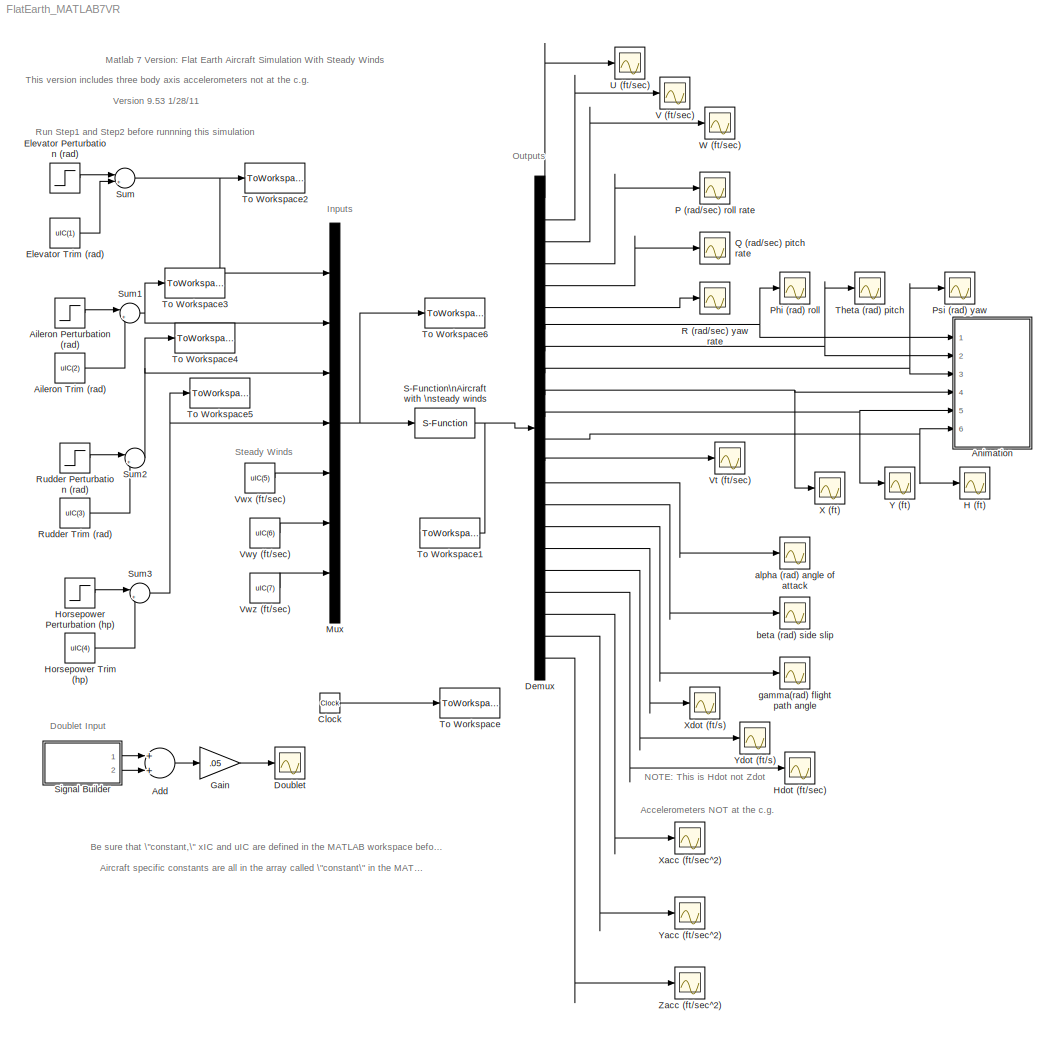
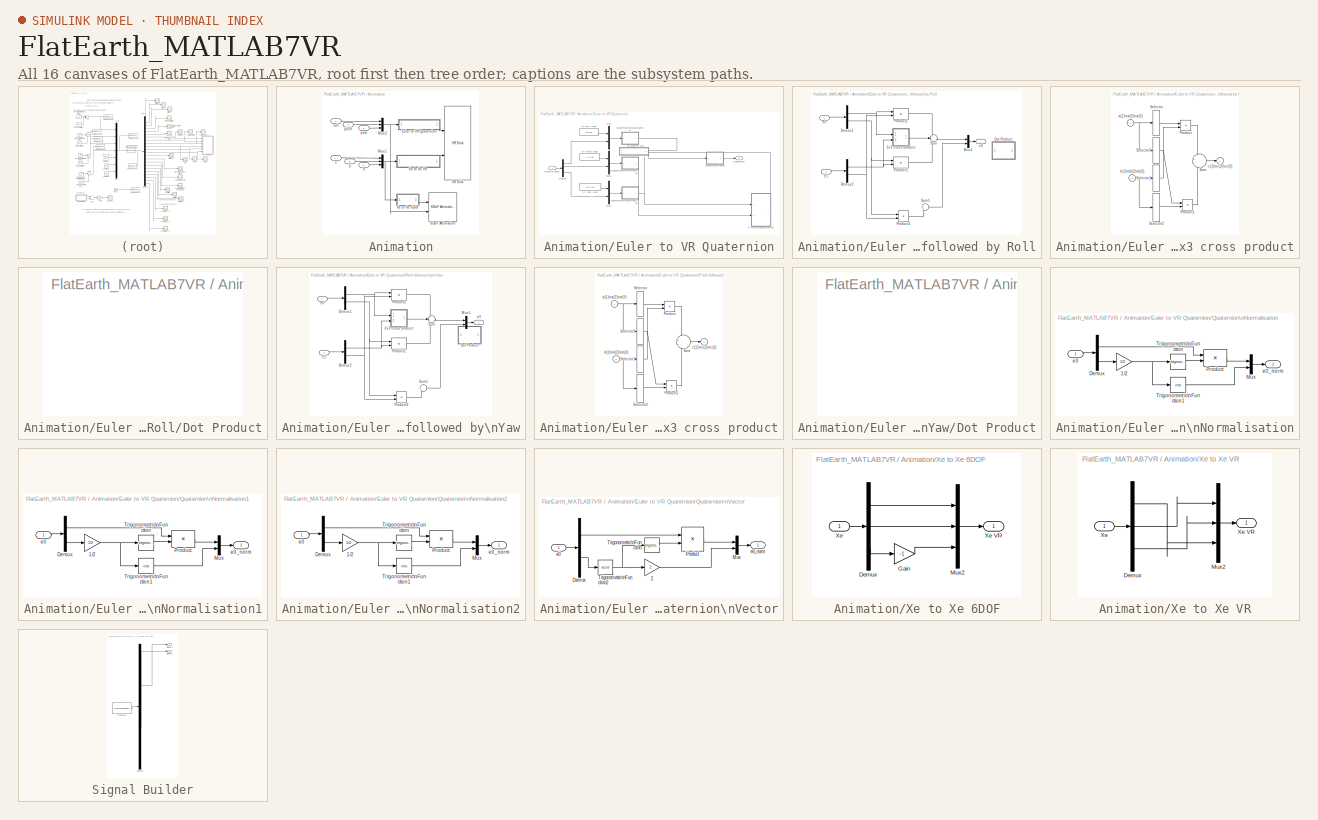
[diagram: thumbnail index - all 16 canvases of the model, root first then tree order]
MODEL FlatEarth_MATLAB7VR
KIND model
BLOCK [Sum] Add
  CollapseMode = All dimensions
  InputSameDT = off
  OutDataTypeMode = Inherit via internal rule
  OutScaling = 2^-10
  Ports = [2, 1]
  SaturateOnIntegerOverflow = off
BLOCK [Step] Aileron Perturbation (rad)
  After = deltaApertRAD
  SampleTime = 0
BLOCK [Constant] Aileron Trim (rad)
  Value = uIC(2)
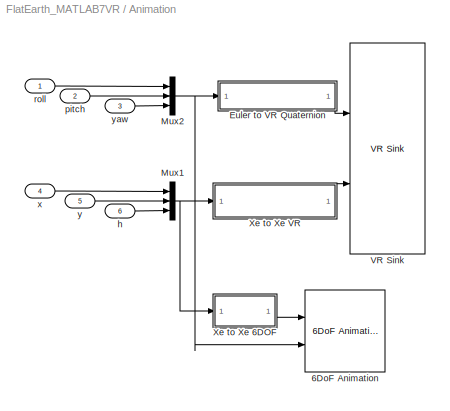
BLOCK [SubSystem] Animation
  FunctionWithSeparateData = off
  MaskHideContents = off
  MinAlgLoopOccurrences = off
  Ports = [6]
  RTWSystemCode = Auto
BLOCK [Reference] Animation/6DoF Animation  REF=aerolibanim/6DoF Animation
  FunctionWithSeparateData = off
  Ports = [2]
  RTWMemSecDataConstants = Inherit from model
  RTWMemSecDataInternal = Inherit from model
  RTWMemSecDataParameters = Inherit from model
  RTWMemSecFuncExecute = Inherit from model
  RTWMemSecFuncInitTerm = Inherit from model
  ShowPortLabels = FromPortIcon
  SourceBlock = aerolibanim/6DoF Animation
  SourceType = 6DoF_Animation
  SystemSampleTime = -1
  u1 = [-10000 10000 -10000 10000 -10000 0]
  u2 = 0.1
  u3 = 20
  u4 = [0 0 0]
  u5 = Fly alongside
  u6 = [100 100 -100]
  u7 = 70
  u8 = on
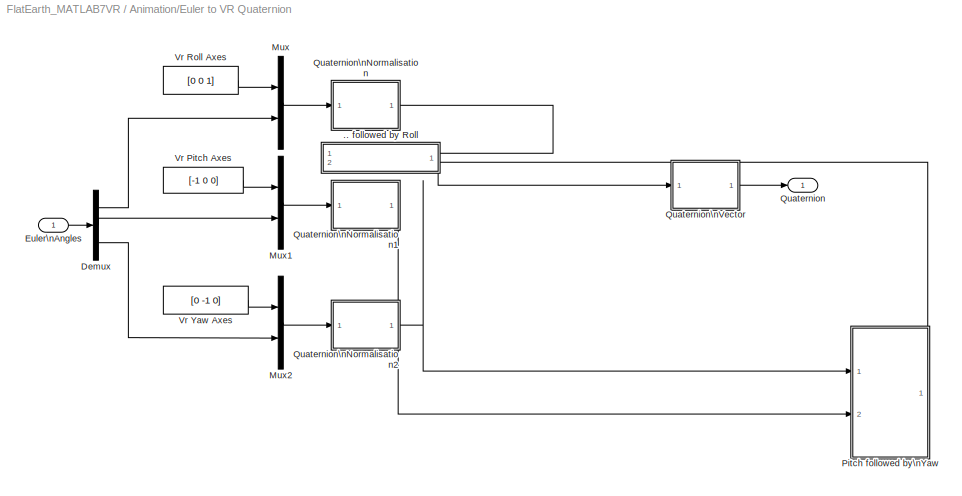
BLOCK [SubSystem] Animation/Euler to VR Quaternion
  FunctionWithSeparateData = off
  MaskHideContents = off
  MinAlgLoopOccurrences = off
  Ports = [1, 1]
  RTWSystemCode = Auto
BLOCK [SubSystem] Animation/Euler to VR Quaternion/.. followed by Roll
  FunctionWithSeparateData = off
  MaskHideContents = off
  MinAlgLoopOccurrences = off
  Ports = [2, 1]
  RTWSystemCode = Auto
BLOCK [SubSystem] Animation/Euler to VR Quaternion/.. followed by Roll/3x3 cross product
  FunctionWithSeparateData = off
  MaskDescription = Calculates the cross product of two 3x1 vectors.
  MaskDisplay = disp('Cross\\nProduct')
  MaskHelp = <p>This block calculates the cross product of two 3x1 vectors, ie.</p>\n\n<ul>C(1) = A(2)*B(3) - A(3)*B(2)</ul>\n<ul>C(2) = A(3)*B(1) - A(1)*B(3)</ul>\n<ul>C(3) = A(1)*B(2) - A(2)*B(1)</ul>\n\n<p>The block inputs and output contain more than one signal as described below.</p>\n\n<p><H4>Block Vector Input 1 - A</H4>\n<ul>\n<li>A(1)</li>\n<li>A(2)</li>\n<li>A(3)</li>\n</ul>\n</p>\n\n<p><H4>Block Vec...<+208ch>
  MaskHideContents = off
  MaskIconFrame = on
  MaskIconOpaque = on
  MaskIconRotate = none
  MaskIconUnits = autoscale
  MaskType = Cross Product
  MinAlgLoopOccurrences = off
  Ports = [2, 1]
  RTWSystemCode = Auto
BLOCK [Product] Animation/Euler to VR Quaternion/.. followed by Roll/3x3 cross product/Product
  CollapseMode = All dimensions
  Ports = [2, 1]
  RndMeth = Floor
BLOCK [Product] Animation/Euler to VR Quaternion/.. followed by Roll/3x3 cross product/Product1
  CollapseMode = All dimensions
  Ports = [2, 1]
  RndMeth = Floor
BLOCK [Selector] Animation/Euler to VR Quaternion/.. followed by Roll/3x3 cross product/Selector
  IndexOptions = Index vector (dialog)
  Indices = 1
  InputPortWidth = 3
  OutputSizes = 1
  Ports = [1, 1]
BLOCK [Selector] Animation/Euler to VR Quaternion/.. followed by Roll/3x3 cross product/Selector1
  IndexOptions = Index vector (dialog)
  Indices = 1
  InputPortWidth = 3
  OutputSizes = 1
  Ports = [1, 1]
BLOCK [Selector] Animation/Euler to VR Quaternion/.. followed by Roll/3x3 cross product/Selector2
  IndexOptions = Index vector (dialog)
  Indices = 1
  InputPortWidth = 3
  OutputSizes = 1
  Ports = [1, 1]
BLOCK [Selector] Animation/Euler to VR Quaternion/.. followed by Roll/3x3 cross product/Selector3
  IndexOptions = Index vector (dialog)
  Indices = 1
  InputPortWidth = 3
  OutputSizes = 1
  Ports = [1, 1]
BLOCK [Sum] Animation/Euler to VR Quaternion/.. followed by Roll/3x3 cross product/Sum
  CollapseMode = All dimensions
  IconShape = round
  Inputs = +|-
  Ports = [2, 1]
BLOCK [Inport] Animation/Euler to VR Quaternion/.. followed by Roll/3x3 cross product/a(1)\na(2)\na(3)
  IconDisplay = Port number
BLOCK [Inport] Animation/Euler to VR Quaternion/.. followed by Roll/3x3 cross product/b(1)\nb(2)\nb(3)
  IconDisplay = Port number
  Port = 2
BLOCK [Outport] Animation/Euler to VR Quaternion/.. followed by Roll/3x3 cross product/c(1)\nc(2)\nc(3)
  BusOutputAsStruct = off
  IconDisplay = Port number
  InitialOutput = 0
BLOCK [Demux] Animation/Euler to VR Quaternion/.. followed by Roll/Demux1
  Outputs = [3 1]
  Ports = [1, 2]
BLOCK [Demux] Animation/Euler to VR Quaternion/.. followed by Roll/Demux2
  Outputs = [3 1]
  Ports = [1, 2]
BLOCK [SubSystem] Animation/Euler to VR Quaternion/.. followed by Roll/Dot Product
  FunctionWithSeparateData = off
  MaskHideContents = off
  MinAlgLoopOccurrences = off
  Ports = []
  RTWSystemCode = Auto
BLOCK [Mux] Animation/Euler to VR Quaternion/.. followed by Roll/Mux1
  DisplayOption = bar
  Inputs = 2
  Ports = [2, 1]
BLOCK [Product] Animation/Euler to VR Quaternion/.. followed by Roll/Product1
  CollapseMode = All dimensions
  Ports = [2, 1]
  RndMeth = Floor
BLOCK [Product] Animation/Euler to VR Quaternion/.. followed by Roll/Product2
  CollapseMode = All dimensions
  Ports = [2, 1]
  RndMeth = Floor
BLOCK [Product] Animation/Euler to VR Quaternion/.. followed by Roll/Product3
  CollapseMode = All dimensions
  Ports = [2, 1]
  RndMeth = Floor
BLOCK [Sum] Animation/Euler to VR Quaternion/.. followed by Roll/Sum
  CollapseMode = All dimensions
  IconShape = round
  Inputs = +++
  Ports = [3, 1]
BLOCK [Sum] Animation/Euler to VR Quaternion/.. followed by Roll/Sum1
  CollapseMode = All dimensions
  IconShape = round
  Inputs = -|+
  Ports = [2, 1]
BLOCK [Inport] Animation/Euler to VR Quaternion/.. followed by Roll/e0
  IconDisplay = Port number
BLOCK [Inport] Animation/Euler to VR Quaternion/.. followed by Roll/e1
  IconDisplay = Port number
  Port = 2
BLOCK [Outport] Animation/Euler to VR Quaternion/.. followed by Roll/e3
  BusOutputAsStruct = off
  IconDisplay = Port number
BLOCK [Demux] Animation/Euler to VR Quaternion/Demux
  Outputs = 3
  Ports = [1, 3]
BLOCK [Inport] Animation/Euler to VR Quaternion/Euler\nAngles
  IconDisplay = Port number
BLOCK [Mux] Animation/Euler to VR Quaternion/Mux
  DisplayOption = bar
  Inputs = 2
  Ports = [2, 1]
BLOCK [Mux] Animation/Euler to VR Quaternion/Mux1
  DisplayOption = bar
  Inputs = 2
  Ports = [2, 1]
BLOCK [Mux] Animation/Euler to VR Quaternion/Mux2
  DisplayOption = bar
  Inputs = 2
  Ports = [2, 1]
BLOCK [SubSystem] Animation/Euler to VR Quaternion/Pitch followed by\nYaw
  FunctionWithSeparateData = off
  MaskHideContents = off
  MinAlgLoopOccurrences = off
  Ports = [2, 1]
  RTWSystemCode = Auto
BLOCK [SubSystem] Animation/Euler to VR Quaternion/Pitch followed by\nYaw/3x3 cross product
  FunctionWithSeparateData = off
  MaskDescription = Calculates the cross product of two 3x1 vectors.
  MaskDisplay = disp('Cross\\nProduct')
  MaskHelp = <p>This block calculates the cross product of two 3x1 vectors, ie.</p>\n\n<ul>C(1) = A(2)*B(3) - A(3)*B(2)</ul>\n<ul>C(2) = A(3)*B(1) - A(1)*B(3)</ul>\n<ul>C(3) = A(1)*B(2) - A(2)*B(1)</ul>\n\n<p>The block inputs and output contain more than one signal as described below.</p>\n\n<p><H4>Block Vector Input 1 - A</H4>\n<ul>\n<li>A(1)</li>\n<li>A(2)</li>\n<li>A(3)</li>\n</ul>\n</p>\n\n<p><H4>Block Vec...<+208ch>
  MaskHideContents = off
  MaskIconFrame = on
  MaskIconOpaque = on
  MaskIconRotate = none
  MaskIconUnits = autoscale
  MaskType = Cross Product
  MinAlgLoopOccurrences = off
  Ports = [2, 1]
  RTWSystemCode = Auto
BLOCK [Product] Animation/Euler to VR Quaternion/Pitch followed by\nYaw/3x3 cross product/Product
  CollapseMode = All dimensions
  Ports = [2, 1]
  RndMeth = Floor
BLOCK [Product] Animation/Euler to VR Quaternion/Pitch followed by\nYaw/3x3 cross product/Product1
  CollapseMode = All dimensions
  Ports = [2, 1]
  RndMeth = Floor
BLOCK [Selector] Animation/Euler to VR Quaternion/Pitch followed by\nYaw/3x3 cross product/Selector
  IndexOptions = Index vector (dialog)
  Indices = 1
  InputPortWidth = 3
  OutputSizes = 1
  Ports = [1, 1]
BLOCK [Selector] Animation/Euler to VR Quaternion/Pitch followed by\nYaw/3x3 cross product/Selector1
  IndexOptions = Index vector (dialog)
  Indices = 1
  InputPortWidth = 3
  OutputSizes = 1
  Ports = [1, 1]
BLOCK [Selector] Animation/Euler to VR Quaternion/Pitch followed by\nYaw/3x3 cross product/Selector2
  IndexOptions = Index vector (dialog)
  Indices = 1
  InputPortWidth = 3
  OutputSizes = 1
  Ports = [1, 1]
BLOCK [Selector] Animation/Euler to VR Quaternion/Pitch followed by\nYaw/3x3 cross product/Selector3
  IndexOptions = Index vector (dialog)
  Indices = 1
  InputPortWidth = 3
  OutputSizes = 1
  Ports = [1, 1]
BLOCK [Sum] Animation/Euler to VR Quaternion/Pitch followed by\nYaw/3x3 cross product/Sum
  CollapseMode = All dimensions
  IconShape = round
  Inputs = +|-
  Ports = [2, 1]
BLOCK [Inport] Animation/Euler to VR Quaternion/Pitch followed by\nYaw/3x3 cross product/a(1)\na(2)\na(3)
  IconDisplay = Port number
BLOCK [Inport] Animation/Euler to VR Quaternion/Pitch followed by\nYaw/3x3 cross product/b(1)\nb(2)\nb(3)
  IconDisplay = Port number
  Port = 2
BLOCK [Outport] Animation/Euler to VR Quaternion/Pitch followed by\nYaw/3x3 cross product/c(1)\nc(2)\nc(3)
  BusOutputAsStruct = off
  IconDisplay = Port number
  InitialOutput = 0
BLOCK [Demux] Animation/Euler to VR Quaternion/Pitch followed by\nYaw/Demux1
  Outputs = [3 1]
  Ports = [1, 2]
BLOCK [Demux] Animation/Euler to VR Quaternion/Pitch followed by\nYaw/Demux2
  Outputs = [3 1]
  Ports = [1, 2]
BLOCK [SubSystem] Animation/Euler to VR Quaternion/Pitch followed by\nYaw/Dot Product
  FunctionWithSeparateData = off
  MaskHideContents = off
  MinAlgLoopOccurrences = off
  Ports = []
  RTWSystemCode = Auto
BLOCK [Mux] Animation/Euler to VR Quaternion/Pitch followed by\nYaw/Mux1
  DisplayOption = bar
  Inputs = 2
  Ports = [2, 1]
BLOCK [Product] Animation/Euler to VR Quaternion/Pitch followed by\nYaw/Product1
  CollapseMode = All dimensions
  Ports = [2, 1]
  RndMeth = Floor
BLOCK [Product] Animation/Euler to VR Quaternion/Pitch followed by\nYaw/Product2
  CollapseMode = All dimensions
  Ports = [2, 1]
  RndMeth = Floor
BLOCK [Product] Animation/Euler to VR Quaternion/Pitch followed by\nYaw/Product3
  CollapseMode = All dimensions
  Ports = [2, 1]
  RndMeth = Floor
BLOCK [Sum] Animation/Euler to VR Quaternion/Pitch followed by\nYaw/Sum
  CollapseMode = All dimensions
  IconShape = round
  Inputs = +++
  Ports = [3, 1]
BLOCK [Sum] Animation/Euler to VR Quaternion/Pitch followed by\nYaw/Sum1
  CollapseMode = All dimensions
  IconShape = round
  Inputs = -|+
  Ports = [2, 1]
BLOCK [Inport] Animation/Euler to VR Quaternion/Pitch followed by\nYaw/e0
  IconDisplay = Port number
BLOCK [Inport] Animation/Euler to VR Quaternion/Pitch followed by\nYaw/e1
  IconDisplay = Port number
  Port = 2
BLOCK [Outport] Animation/Euler to VR Quaternion/Pitch followed by\nYaw/e3
  BusOutputAsStruct = off
  IconDisplay = Port number
BLOCK [Outport] Animation/Euler to VR Quaternion/Quaternion
  BusOutputAsStruct = off
  IconDisplay = Port number
BLOCK [SubSystem] Animation/Euler to VR Quaternion/Quaternion\nNormalisation
  FunctionWithSeparateData = off
  MaskHideContents = off
  MinAlgLoopOccurrences = off
  Ports = [1, 1]
  RTWSystemCode = Auto
BLOCK [Gain] Animation/Euler to VR Quaternion/Quaternion\nNormalisation/1//2
  Gain = 1/2
BLOCK [Demux] Animation/Euler to VR Quaternion/Quaternion\nNormalisation/Demux
  Outputs = [3 1]
  Ports = [1, 2]
BLOCK [Mux] Animation/Euler to VR Quaternion/Quaternion\nNormalisation/Mux
  DisplayOption = bar
  Inputs = 2
  Ports = [2, 1]
BLOCK [Product] Animation/Euler to VR Quaternion/Quaternion\nNormalisation/Product
  CollapseMode = All dimensions
  Ports = [2, 1]
  RndMeth = Floor
BLOCK [Trigonometry] Animation/Euler to VR Quaternion/Quaternion\nNormalisation/Trigonometric\nFunction
  Ports = [1, 1]
BLOCK [Trigonometry] Animation/Euler to VR Quaternion/Quaternion\nNormalisation/Trigonometric\nFunction1
  Operator = cos
  Ports = [1, 1]
BLOCK [Inport] Animation/Euler to VR Quaternion/Quaternion\nNormalisation/e0
  IconDisplay = Port number
BLOCK [Outport] Animation/Euler to VR Quaternion/Quaternion\nNormalisation/e0_norm
  BusOutputAsStruct = off
  IconDisplay = Port number
BLOCK [SubSystem] Animation/Euler to VR Quaternion/Quaternion\nNormalisation1
  FunctionWithSeparateData = off
  MaskHideContents = off
  MinAlgLoopOccurrences = off
  Ports = [1, 1]
  RTWSystemCode = Auto
BLOCK [Gain] Animation/Euler to VR Quaternion/Quaternion\nNormalisation1/1//2
  Gain = 1/2
BLOCK [Demux] Animation/Euler to VR Quaternion/Quaternion\nNormalisation1/Demux
  Outputs = [3 1]
  Ports = [1, 2]
BLOCK [Mux] Animation/Euler to VR Quaternion/Quaternion\nNormalisation1/Mux
  DisplayOption = bar
  Inputs = 2
  Ports = [2, 1]
BLOCK [Product] Animation/Euler to VR Quaternion/Quaternion\nNormalisation1/Product
  CollapseMode = All dimensions
  Ports = [2, 1]
  RndMeth = Floor
BLOCK [Trigonometry] Animation/Euler to VR Quaternion/Quaternion\nNormalisation1/Trigonometric\nFunction
  Ports = [1, 1]
BLOCK [Trigonometry] Animation/Euler to VR Quaternion/Quaternion\nNormalisation1/Trigonometric\nFunction1
  Operator = cos
  Ports = [1, 1]
BLOCK [Inport] Animation/Euler to VR Quaternion/Quaternion\nNormalisation1/e0
  IconDisplay = Port number
BLOCK [Outport] Animation/Euler to VR Quaternion/Quaternion\nNormalisation1/e0_norm
  BusOutputAsStruct = off
  IconDisplay = Port number
BLOCK [SubSystem] Animation/Euler to VR Quaternion/Quaternion\nNormalisation2
  FunctionWithSeparateData = off
  MaskHideContents = off
  MinAlgLoopOccurrences = off
  Ports = [1, 1]
  RTWSystemCode = Auto
BLOCK [Gain] Animation/Euler to VR Quaternion/Quaternion\nNormalisation2/1//2
  Gain = 1/2
BLOCK [Demux] Animation/Euler to VR Quaternion/Quaternion\nNormalisation2/Demux
  Outputs = [3 1]
  Ports = [1, 2]
BLOCK [Mux] Animation/Euler to VR Quaternion/Quaternion\nNormalisation2/Mux
  DisplayOption = bar
  Inputs = 2
  Ports = [2, 1]
BLOCK [Product] Animation/Euler to VR Quaternion/Quaternion\nNormalisation2/Product
  CollapseMode = All dimensions
  Ports = [2, 1]
  RndMeth = Floor
BLOCK [Trigonometry] Animation/Euler to VR Quaternion/Quaternion\nNormalisation2/Trigonometric\nFunction
  Ports = [1, 1]
BLOCK [Trigonometry] Animation/Euler to VR Quaternion/Quaternion\nNormalisation2/Trigonometric\nFunction1
  Operator = cos
  Ports = [1, 1]
BLOCK [Inport] Animation/Euler to VR Quaternion/Quaternion\nNormalisation2/e0
  IconDisplay = Port number
BLOCK [Outport] Animation/Euler to VR Quaternion/Quaternion\nNormalisation2/e0_norm
  BusOutputAsStruct = off
  IconDisplay = Port number
BLOCK [SubSystem] Animation/Euler to VR Quaternion/Quaternion\nVector
  FunctionWithSeparateData = off
  MaskHideContents = off
  MinAlgLoopOccurrences = off
  Ports = [1, 1]
  RTWSystemCode = Auto
BLOCK [Gain] Animation/Euler to VR Quaternion/Quaternion\nVector/2
  Gain = 2
BLOCK [Demux] Animation/Euler to VR Quaternion/Quaternion\nVector/Demux
  Outputs = [3 1]
  Ports = [1, 2]
BLOCK [Mux] Animation/Euler to VR Quaternion/Quaternion\nVector/Mux
  DisplayOption = bar
  Inputs = 2
  Ports = [2, 1]
BLOCK [Product] Animation/Euler to VR Quaternion/Quaternion\nVector/Product
  CollapseMode = All dimensions
  Inputs = */
  Ports = [2, 1]
  RndMeth = Floor
BLOCK [Trigonometry] Animation/Euler to VR Quaternion/Quaternion\nVector/Trigonometric\nFunction
  Ports = [1, 1]
BLOCK [Trigonometry] Animation/Euler to VR Quaternion/Quaternion\nVector/Trigonometric\nFunction2
  Operator = acos
  Ports = [1, 1]
BLOCK [Inport] Animation/Euler to VR Quaternion/Quaternion\nVector/e0
  IconDisplay = Port number
BLOCK [Outport] Animation/Euler to VR Quaternion/Quaternion\nVector/e0_norm
  BusOutputAsStruct = off
  IconDisplay = Port number
BLOCK [Constant] Animation/Euler to VR Quaternion/Vr Pitch Axes
  Value = [-1 0 0]
BLOCK [Constant] Animation/Euler to VR Quaternion/Vr Roll Axes
  Value = [0 0 1]
BLOCK [Constant] Animation/Euler to VR Quaternion/Vr Yaw Axes
  Value = [0 -1 0]
BLOCK [Mux] Animation/Mux1
  DisplayOption = bar
  Inputs = 3
  Ports = [3, 1]
BLOCK [Mux] Animation/Mux2
  DisplayOption = bar
  Inputs = 3
  Ports = [3, 1]
BLOCK [Reference] Animation/VR Sink  REF=vrlib/VR Sink
  AutoView = on
  FieldsWritten = Plane.rotation.4.1.double#Plane.translation.3.1.double
  FigureProperties = {'Position', 'Name', 'Viewpoint', 'CameraBound', 'CameraDirection', 'CameraPosition', 'CameraUpVector', 'ZoomFactor', 'Antialiasing', 'Headlight', 'Lighting', 'NavPanel', 'StatusBar', 'ToolBar', 'Textures', 'Transparency', 'Wireframe', 'NavZones', 'NavMode', 'NavSpeed', 'Record2DCompressMethod', 'Record2DCompressQuality', 'Record2D', 'Record2DFileName', 'Record2DFPS'; [1.3300000000000000e+03   6.7...<+526ch>
  Ports = [2]
  RemoteChange = off
  RemoteView = off
  SampleTime = -1
  SourceBlock = vrlib/VR Sink
  SourceType = Virtual Reality Sink
  ViewEnable = on
  WorldFileName = F15OverOcean.WRL
BLOCK [SubSystem] Animation/Xe to Xe 6DOF
  FunctionWithSeparateData = off
  MaskHideContents = off
  MinAlgLoopOccurrences = off
  Ports = [1, 1]
  RTWSystemCode = Auto
BLOCK [Demux] Animation/Xe to Xe 6DOF/Demux
  DisplayOption = bar
  Outputs = 3
  Ports = [1, 3]
BLOCK [Gain] Animation/Xe to Xe 6DOF/Gain
  Gain = -1
  OutDataTypeMode = Inherit via internal rule
  ParameterDataTypeMode = Inherit via internal rule
  SaturateOnIntegerOverflow = off
BLOCK [Mux] Animation/Xe to Xe 6DOF/Mux2
  DisplayOption = bar
  Inputs = 3
  Ports = [3, 1]
BLOCK [Inport] Animation/Xe to Xe 6DOF/Xe
  IconDisplay = Port number
BLOCK [Outport] Animation/Xe to Xe 6DOF/Xe VR
  BusOutputAsStruct = off
  IconDisplay = Port number
BLOCK [SubSystem] Animation/Xe to Xe VR
  FunctionWithSeparateData = off
  MaskHideContents = off
  MinAlgLoopOccurrences = off
  Ports = [1, 1]
  RTWSystemCode = Auto
BLOCK [Demux] Animation/Xe to Xe VR/Demux
  DisplayOption = bar
  Outputs = 3
  Ports = [1, 3]
BLOCK [Mux] Animation/Xe to Xe VR/Mux2
  DisplayOption = bar
  Inputs = 3
  Ports = [3, 1]
BLOCK [Inport] Animation/Xe to Xe VR/Xe
  IconDisplay = Port number
BLOCK [Outport] Animation/Xe to Xe VR/Xe VR
  BusOutputAsStruct = off
  IconDisplay = Port number
BLOCK [Inport] Animation/h
  IconDisplay = Port number
  OutDataType = fixdt(1,16,0)
  OutScaling = []
  Port = 6
BLOCK [Inport] Animation/pitch
  IconDisplay = Port number
  OutDataType = fixdt(1,16,0)
  OutScaling = []
  Port = 2
BLOCK [Inport] Animation/roll
  IconDisplay = Port number
  OutDataType = fixdt(1,16,0)
  OutScaling = []
BLOCK [Inport] Animation/x
  IconDisplay = Port number
  OutDataType = fixdt(1,16,0)
  OutScaling = []
  Port = 4
BLOCK [Inport] Animation/y
  IconDisplay = Port number
  OutDataType = fixdt(1,16,0)
  OutScaling = []
  Port = 5
BLOCK [Inport] Animation/yaw
  IconDisplay = Port number
  OutDataType = fixdt(1,16,0)
  OutScaling = []
  Port = 3
BLOCK [Clock] Clock
  Decimation = 10
BLOCK [Demux] Demux
  Outputs = 22
  Ports = [1, 22]
BLOCK [Scope] Doublet
  DataFormat = StructureWithTime
  Floating = off
  NumInputPorts = 1
  Ports = [1]
  SampleTime = 0
  SaveName = ScopeData22
BLOCK [Step] Elevator Perturbation (rad)
  After = deltaEpertRAD
  SampleTime = 0
BLOCK [Constant] Elevator Trim (rad)
  Value = uIC(1)
BLOCK [Gain] Gain
  Gain = .05
  OutDataTypeMode = Inherit via internal rule
  ParameterDataTypeMode = Inherit via internal rule
  SaturateOnIntegerOverflow = off
BLOCK [Scope] H (ft)
  DataFormat = StructureWithTime
  Floating = off
  NumInputPorts = 1
  Ports = [1]
  SampleTime = 0
  SaveName = ScopeData11
  TimeRange = 50
  ZoomMode = xonly
BLOCK [Scope] Hdot (ft//sec)
  DataFormat = StructureWithTime
  Floating = off
  NumInputPorts = 1
  Ports = [1]
  SampleTime = 0
  SaveName = ScopeData18
BLOCK [Step] Horsepower Perturbation (hp)
  After = deltabhppert
  SampleTime = 0
BLOCK [Constant] Horsepower Trim (hp)
  Value = uIC(4)
BLOCK [Mux] Mux
  DisplayOption = bar
  Inputs = 7
  Ports = [7, 1]
BLOCK [Scope] P (rad//sec) roll rate
  DataFormat = StructureWithTime
  Floating = off
  NumInputPorts = 1
  Ports = [1]
  SampleTime = 0
  SaveName = ScopeData3
  ZoomMode = xonly
BLOCK [Scope] Phi (rad) roll
  DataFormat = StructureWithTime
  Floating = off
  NumInputPorts = 1
  Ports = [1]
  SampleTime = 0
  SaveName = ScopeData6
BLOCK [Scope] Psi (rad) yaw
  DataFormat = StructureWithTime
  Floating = off
  NumInputPorts = 1
  Ports = [1]
  SampleTime = 0
  SaveName = ScopeData8
  ZoomMode = yonly
BLOCK [Scope] Q (rad//sec) pitch rate
  DataFormat = StructureWithTime
  Floating = off
  NumInputPorts = 1
  Ports = [1]
  SampleTime = 0
  SaveName = ScopeData4
BLOCK [Scope] R (rad//sec) yaw rate
  DataFormat = StructureWithTime
  Floating = off
  NumInputPorts = 1
  Ports = [1]
  SampleTime = 0
  SaveName = ScopeData5
BLOCK [Step] Rudder Perturbation (rad)
  After = deltaRpertRAD
  SampleTime = 0
BLOCK [Constant] Rudder Trim (rad)
  Value = uIC(3)
BLOCK [S-Function] S-Function\nAircraft with \nsteady winds
  FunctionName = aircraft9
  Parameters = constant,xIC,Xa
  Ports = [1, 1]
BLOCK [SubSystem] Signal Builder
  ClipboardFcn = sigbuilder_block('clipboard');
  CloseFcn = sigbuilder_block('close');
  CopyFcn = sigbuilder_block('copy');
  DeleteFcn = sigbuilder_block('delete');
  FunctionWithSeparateData = off
  LoadFcn = sigbuilder_block('load');
  MaskDescription = Sigbuilder GUI
  MaskDisplay = plot(0,0,100,100,[10,10,40,40,10],[80,20,20,80,80],[40,10],[50,50], [40,27,10],[65,72,56],[40,25,25,10],[28,28,43,43]);
  MaskHideContents = off
  MaskIconFrame = on
  MaskIconOpaque = off
  MaskIconRotate = port
  MaskIconUnits = autoscale
  MaskInitialization = if ~strcmp(get_param(bdroot(gcbh),'SimulationStatus'),'stopped') tuvar = sigbuilder_block('maskInit'); end
  MaskType = Sigbuilder block
  MinAlgLoopOccurrences = off
  ModelCloseFcn = sigbuilder_block('modelClose');
  NameChangeFcn = sigbuilder_block('namechange');
  OpenFcn = sigbuilder_block('open',[437.6 199.2 550.4 400 ]);
  Ports = [0, 2]
  PreSaveFcn = sigbuilder_block('preSave');
  RTWSystemCode = Auto
  StartFcn = sigbuilder_block('start');
  StopFcn = sigbuilder_block('stop');
  Tag = STV Subsys
BLOCK [Demux] Signal Builder/Demux
  Outputs = 2
  Ports = [1, 2]
  Tag = STV Demux
BLOCK [FromWorkspace] Signal Builder/FromWs
  SampleTime = 0
  SigBuilderData = DataTag0
  Tag = STV FromWs
  VariableName = tuvar
  VnvData = DataTag1
  ZeroCross = on
BLOCK [Outport] Signal Builder/Signal 1
  BusOutputAsStruct = off
  IconDisplay = Port number
  Tag = STV Outport
BLOCK [Outport] Signal Builder/Signal 2
  BusOutputAsStruct = off
  IconDisplay = Port number
  Port = 2
  Tag = STV Outport
BLOCK [Sum] Sum
  CollapseMode = All dimensions
  IconShape = round
  Inputs = |++
  Ports = [2, 1]
BLOCK [Sum] Sum1
  CollapseMode = All dimensions
  IconShape = round
  Inputs = |++
  Ports = [2, 1]
BLOCK [Sum] Sum2
  CollapseMode = All dimensions
  IconShape = round
  Inputs = |++
  Ports = [2, 1]
BLOCK [Sum] Sum3
  CollapseMode = All dimensions
  IconShape = round
  Inputs = |++
  Ports = [2, 1]
BLOCK [Scope] Theta (rad) pitch
  DataFormat = StructureWithTime
  Floating = off
  NumInputPorts = 1
  Ports = [1]
  SampleTime = 0
  SaveName = ScopeData7
BLOCK [ToWorkspace] To Workspace
  MaxDataPoints = inf
  SampleTime = -1
  SaveFormat = Array
  VariableName = taircraft
BLOCK [ToWorkspace] To Workspace1
  MaxDataPoints = inf
  SampleTime = -1
  SaveFormat = Array
  VariableName = yaircraft
BLOCK [ToWorkspace] To Workspace2
  MaxDataPoints = inf
  SampleTime = -1
  SaveFormat = Array
  VariableName = deltaE
BLOCK [ToWorkspace] To Workspace3
  MaxDataPoints = inf
  SampleTime = -1
  SaveFormat = Array
  VariableName = deltaA
BLOCK [ToWorkspace] To Workspace4
  MaxDataPoints = inf
  SampleTime = -1
  SaveFormat = Array
  VariableName = deltaR
BLOCK [ToWorkspace] To Workspace5
  MaxDataPoints = inf
  SampleTime = -1
  SaveFormat = Array
  VariableName = deltabhp
BLOCK [ToWorkspace] To Workspace6
  MaxDataPoints = inf
  SampleTime = -1
  SaveFormat = Array
  VariableName = uaircraft
BLOCK [Scope] U (ft//sec)
  DataFormat = StructureWithTime
  Floating = off
  NumInputPorts = 1
  Ports = [1]
  SampleTime = 0
BLOCK [Scope] V (ft//sec)
  DataFormat = StructureWithTime
  Floating = off
  NumInputPorts = 1
  Ports = [1]
  SampleTime = 0
  SaveName = ScopeData1
BLOCK [Scope] Vt (ft//sec)
  DataFormat = StructureWithTime
  Floating = off
  NumInputPorts = 1
  Ports = [1]
  SampleTime = 0
  SaveName = ScopeData12
  TimeRange = 50
  YMax = 99.324
  YMin = 99.319
BLOCK [Constant] Vwx (ft//sec)
  Value = uIC(5)
BLOCK [Constant] Vwy (ft//sec)
  Value = uIC(6)
BLOCK [Constant] Vwz (ft//sec)
  Value = uIC(7)
BLOCK [Scope] W (ft//sec)
  DataFormat = StructureWithTime
  Floating = off
  NumInputPorts = 1
  Ports = [1]
  SampleTime = 0
  SaveName = ScopeData2
  YMax = 14
  YMin = 0
BLOCK [Scope] X (ft)
  DataFormat = StructureWithTime
  Floating = off
  NumInputPorts = 1
  Ports = [1]
  SampleTime = 0
  SaveName = ScopeData9
BLOCK [Scope] Xacc (ft//sec^2)
  DataFormat = StructureWithTime
  Floating = off
  NumInputPorts = 1
  Ports = [1]
  SampleTime = 0
  SaveName = ScopeData19
BLOCK [Scope] Xdot (ft//s)
  DataFormat = StructureWithTime
  Floating = off
  NumInputPorts = 1
  Ports = [1]
  SampleTime = 0
  SaveName = ScopeData16
BLOCK [Scope] Y (ft)
  DataFormat = StructureWithTime
  Floating = off
  NumInputPorts = 1
  Ports = [1]
  SampleTime = 0
  SaveName = ScopeData10
BLOCK [Scope] Yacc (ft//sec^2)
  DataFormat = StructureWithTime
  Floating = off
  NumInputPorts = 1
  Ports = [1]
  SampleTime = 0
  SaveName = ScopeData20
BLOCK [Scope] Ydot (ft//s)
  DataFormat = StructureWithTime
  Floating = off
  NumInputPorts = 1
  Ports = [1]
  SampleTime = 0
  SaveName = ScopeData17
BLOCK [Scope] Zacc (ft//sec^2)
  DataFormat = StructureWithTime
  Floating = off
  NumInputPorts = 1
  Ports = [1]
  SampleTime = 0
  SaveName = ScopeData21
BLOCK [Scope] alpha (rad) angle of attack
  DataFormat = StructureWithTime
  Floating = off
  NumInputPorts = 1
  Ports = [1]
  SampleTime = 0
  SaveName = ScopeData13
BLOCK [Scope] beta (rad) side slip
  DataFormat = StructureWithTime
  Floating = off
  NumInputPorts = 1
  Ports = [1]
  SampleTime = 0
  SaveName = ScopeData14
BLOCK [Scope] gamma(rad) flight path angle
  DataFormat = StructureWithTime
  Floating = off
  NumInputPorts = 1
  Ports = [1]
  SampleTime = 0
  SaveName = ScopeData15
ANNOTATION (root): Accelerometers NOT at the c.g.
ANNOTATION (root): Aircraft specific constants are all in the array called \"constant\" in the MATLAB workspace.
ANNOTATION (root): Be sure that \"constant,\" xIC and uIC are defined in the MATLAB workspace before running.
ANNOTATION (root): Doublet Input
ANNOTATION (root): Inputs
ANNOTATION (root): Matlab 7 Version: Flat Earth Aircraft Simulation With Steady Winds
ANNOTATION (root): NOTE: This is Hdot not Zdot
ANNOTATION (root): Outputs
ANNOTATION (root): Run Step1 and Step2 before runnning this simulation
ANNOTATION (root): Steady Winds
ANNOTATION (root): This version includes three body axis accelerometers not at the c.g.
ANNOTATION (root): Version 9.53 1/28/11
LINE Add:1 -> Gain:1
LINE Aileron Perturbation (rad):1 -> Sum1:1
LINE Aileron Trim (rad):1 -> Sum1:2
LINE Animation/Euler to VR Quaternion/.. followed by Roll/3x3 cross product/Product1:1 -> Animation/Euler to VR Quaternion/.. followed by Roll/3x3 cross product/Sum:2
LINE Animation/Euler to VR Quaternion/.. followed by Roll/3x3 cross product/Product:1 -> Animation/Euler to VR Quaternion/.. followed by Roll/3x3 cross product/Sum:1
LINE Animation/Euler to VR Quaternion/.. followed by Roll/3x3 cross product/Selector1:1 -> Animation/Euler to VR Quaternion/.. followed by Roll/3x3 cross product/Product:2
LINE Animation/Euler to VR Quaternion/.. followed by Roll/3x3 cross product/Selector2:1 -> Animation/Euler to VR Quaternion/.. followed by Roll/3x3 cross product/Product1:2
LINE Animation/Euler to VR Quaternion/.. followed by Roll/3x3 cross product/Selector3:1 -> Animation/Euler to VR Quaternion/.. followed by Roll/3x3 cross product/Product1:1
LINE Animation/Euler to VR Quaternion/.. followed by Roll/3x3 cross product/Selector:1 -> Animation/Euler to VR Quaternion/.. followed by Roll/3x3 cross product/Product:1
LINE Animation/Euler to VR Quaternion/.. followed by Roll/3x3 cross product/Sum:1 -> Animation/Euler to VR Quaternion/.. followed by Roll/3x3 cross product/c(1)\nc(2)\nc(3):1
NET Animation/Euler to VR Quaternion/.. followed by Roll/3x3 cross product/a(1)\na(2)\na(3):1 -> Animation/Euler to VR Quaternion/.. followed by Roll/3x3 cross product/Selector3:1, Animation/Euler to VR Quaternion/.. followed by Roll/3x3 cross product/Selector:1
NET Animation/Euler to VR Quaternion/.. followed by Roll/3x3 cross product/b(1)\nb(2)\nb(3):1 -> Animation/Euler to VR Quaternion/.. followed by Roll/3x3 cross product/Selector1:1, Animation/Euler to VR Quaternion/.. followed by Roll/3x3 cross product/Selector2:1
LINE Animation/Euler to VR Quaternion/.. followed by Roll/3x3 cross product:1 -> Animation/Euler to VR Quaternion/.. followed by Roll/Sum:2
NET Animation/Euler to VR Quaternion/.. followed by Roll/Demux1:1 -> Animation/Euler to VR Quaternion/.. followed by Roll/3x3 cross product:1, Animation/Euler to VR Quaternion/.. followed by Roll/Product2:1
NET Animation/Euler to VR Quaternion/.. followed by Roll/Demux1:2 -> Animation/Euler to VR Quaternion/.. followed by Roll/Product1:1, Animation/Euler to VR Quaternion/.. followed by Roll/Product3:1
NET Animation/Euler to VR Quaternion/.. followed by Roll/Demux2:1 -> Animation/Euler to VR Quaternion/.. followed by Roll/3x3 cross product:2, Animation/Euler to VR Quaternion/.. followed by Roll/Product1:2
NET Animation/Euler to VR Quaternion/.. followed by Roll/Demux2:2 -> Animation/Euler to VR Quaternion/.. followed by Roll/Product2:2, Animation/Euler to VR Quaternion/.. followed by Roll/Product3:2
LINE Animation/Euler to VR Quaternion/.. followed by Roll/Mux1:1 -> Animation/Euler to VR Quaternion/.. followed by Roll/e3:1
LINE Animation/Euler to VR Quaternion/.. followed by Roll/Product1:1 -> Animation/Euler to VR Quaternion/.. followed by Roll/Sum:3
LINE Animation/Euler to VR Quaternion/.. followed by Roll/Product2:1 -> Animation/Euler to VR Quaternion/.. followed by Roll/Sum:1
LINE Animation/Euler to VR Quaternion/.. followed by Roll/Product3:1 -> Animation/Euler to VR Quaternion/.. followed by Roll/Sum1:2
LINE Animation/Euler to VR Quaternion/.. followed by Roll/Sum1:1 -> Animation/Euler to VR Quaternion/.. followed by Roll/Mux1:2
LINE Animation/Euler to VR Quaternion/.. followed by Roll/Sum:1 -> Animation/Euler to VR Quaternion/.. followed by Roll/Mux1:1
LINE Animation/Euler to VR Quaternion/.. followed by Roll/e0:1 -> Animation/Euler to VR Quaternion/.. followed by Roll/Demux1:1
LINE Animation/Euler to VR Quaternion/.. followed by Roll/e1:1 -> Animation/Euler to VR Quaternion/.. followed by Roll/Demux2:1
LINE Animation/Euler to VR Quaternion/.. followed by Roll:1 -> Animation/Euler to VR Quaternion/Quaternion\nVector:1
LINE Animation/Euler to VR Quaternion/Demux:1 -> Animation/Euler to VR Quaternion/Mux:2
LINE Animation/Euler to VR Quaternion/Demux:2 -> Animation/Euler to VR Quaternion/Mux1:2
LINE Animation/Euler to VR Quaternion/Demux:3 -> Animation/Euler to VR Quaternion/Mux2:2
LINE Animation/Euler to VR Quaternion/Euler\nAngles:1 -> Animation/Euler to VR Quaternion/Demux:1
LINE Animation/Euler to VR Quaternion/Mux1:1 -> Animation/Euler to VR Quaternion/Quaternion\nNormalisation1:1
LINE Animation/Euler to VR Quaternion/Mux2:1 -> Animation/Euler to VR Quaternion/Quaternion\nNormalisation2:1
LINE Animation/Euler to VR Quaternion/Mux:1 -> Animation/Euler to VR Quaternion/Quaternion\nNormalisation:1
LINE Animation/Euler to VR Quaternion/Pitch followed by\nYaw/3x3 cross product/Product1:1 -> Animation/Euler to VR Quaternion/Pitch followed by\nYaw/3x3 cross product/Sum:2
LINE Animation/Euler to VR Quaternion/Pitch followed by\nYaw/3x3 cross product/Product:1 -> Animation/Euler to VR Quaternion/Pitch followed by\nYaw/3x3 cross product/Sum:1
LINE Animation/Euler to VR Quaternion/Pitch followed by\nYaw/3x3 cross product/Selector1:1 -> Animation/Euler to VR Quaternion/Pitch followed by\nYaw/3x3 cross product/Product:2
LINE Animation/Euler to VR Quaternion/Pitch followed by\nYaw/3x3 cross product/Selector2:1 -> Animation/Euler to VR Quaternion/Pitch followed by\nYaw/3x3 cross product/Product1:2
LINE Animation/Euler to VR Quaternion/Pitch followed by\nYaw/3x3 cross product/Selector3:1 -> Animation/Euler to VR Quaternion/Pitch followed by\nYaw/3x3 cross product/Product1:1
LINE Animation/Euler to VR Quaternion/Pitch followed by\nYaw/3x3 cross product/Selector:1 -> Animation/Euler to VR Quaternion/Pitch followed by\nYaw/3x3 cross product/Product:1
LINE Animation/Euler to VR Quaternion/Pitch followed by\nYaw/3x3 cross product/Sum:1 -> Animation/Euler to VR Quaternion/Pitch followed by\nYaw/3x3 cross product/c(1)\nc(2)\nc(3):1
NET Animation/Euler to VR Quaternion/Pitch followed by\nYaw/3x3 cross product/a(1)\na(2)\na(3):1 -> Animation/Euler to VR Quaternion/Pitch followed by\nYaw/3x3 cross product/Selector3:1, Animation/Euler to VR Quaternion/Pitch followed by\nYaw/3x3 cross product/Selector:1
NET Animation/Euler to VR Quaternion/Pitch followed by\nYaw/3x3 cross product/b(1)\nb(2)\nb(3):1 -> Animation/Euler to VR Quaternion/Pitch followed by\nYaw/3x3 cross product/Selector1:1, Animation/Euler to VR Quaternion/Pitch followed by\nYaw/3x3 cross product/Selector2:1
LINE Animation/Euler to VR Quaternion/Pitch followed by\nYaw/3x3 cross product:1 -> Animation/Euler to VR Quaternion/Pitch followed by\nYaw/Sum:2
NET Animation/Euler to VR Quaternion/Pitch followed by\nYaw/Demux1:1 -> Animation/Euler to VR Quaternion/Pitch followed by\nYaw/3x3 cross product:1, Animation/Euler to VR Quaternion/Pitch followed by\nYaw/Product2:1
NET Animation/Euler to VR Quaternion/Pitch followed by\nYaw/Demux1:2 -> Animation/Euler to VR Quaternion/Pitch followed by\nYaw/Product1:1, Animation/Euler to VR Quaternion/Pitch followed by\nYaw/Product3:1
NET Animation/Euler to VR Quaternion/Pitch followed by\nYaw/Demux2:1 -> Animation/Euler to VR Quaternion/Pitch followed by\nYaw/3x3 cross product:2, Animation/Euler to VR Quaternion/Pitch followed by\nYaw/Product1:2
NET Animation/Euler to VR Quaternion/Pitch followed by\nYaw/Demux2:2 -> Animation/Euler to VR Quaternion/Pitch followed by\nYaw/Product2:2, Animation/Euler to VR Quaternion/Pitch followed by\nYaw/Product3:2
LINE Animation/Euler to VR Quaternion/Pitch followed by\nYaw/Mux1:1 -> Animation/Euler to VR Quaternion/Pitch followed by\nYaw/e3:1
LINE Animation/Euler to VR Quaternion/Pitch followed by\nYaw/Product1:1 -> Animation/Euler to VR Quaternion/Pitch followed by\nYaw/Sum:3
LINE Animation/Euler to VR Quaternion/Pitch followed by\nYaw/Product2:1 -> Animation/Euler to VR Quaternion/Pitch followed by\nYaw/Sum:1
LINE Animation/Euler to VR Quaternion/Pitch followed by\nYaw/Product3:1 -> Animation/Euler to VR Quaternion/Pitch followed by\nYaw/Sum1:2
LINE Animation/Euler to VR Quaternion/Pitch followed by\nYaw/Sum1:1 -> Animation/Euler to VR Quaternion/Pitch followed by\nYaw/Mux1:2
LINE Animation/Euler to VR Quaternion/Pitch followed by\nYaw/Sum:1 -> Animation/Euler to VR Quaternion/Pitch followed by\nYaw/Mux1:1
LINE Animation/Euler to VR Quaternion/Pitch followed by\nYaw/e0:1 -> Animation/Euler to VR Quaternion/Pitch followed by\nYaw/Demux1:1
LINE Animation/Euler to VR Quaternion/Pitch followed by\nYaw/e1:1 -> Animation/Euler to VR Quaternion/Pitch followed by\nYaw/Demux2:1
LINE Animation/Euler to VR Quaternion/Pitch followed by\nYaw:1 -> Animation/Euler to VR Quaternion/.. followed by Roll:2
NET Animation/Euler to VR Quaternion/Quaternion\nNormalisation/1//2:1 -> Animation/Euler to VR Quaternion/Quaternion\nNormalisation/Trigonometric\nFunction1:1, Animation/Euler to VR Quaternion/Quaternion\nNormalisation/Trigonometric\nFunction:1
LINE Animation/Euler to VR Quaternion/Quaternion\nNormalisation/Demux:1 -> Animation/Euler to VR Quaternion/Quaternion\nNormalisation/Product:1
LINE Animation/Euler to VR Quaternion/Quaternion\nNormalisation/Demux:2 -> Animation/Euler to VR Quaternion/Quaternion\nNormalisation/1//2:1
LINE Animation/Euler to VR Quaternion/Quaternion\nNormalisation/Mux:1 -> Animation/Euler to VR Quaternion/Quaternion\nNormalisation/e0_norm:1
LINE Animation/Euler to VR Quaternion/Quaternion\nNormalisation/Product:1 -> Animation/Euler to VR Quaternion/Quaternion\nNormalisation/Mux:1
LINE Animation/Euler to VR Quaternion/Quaternion\nNormalisation/Trigonometric\nFunction1:1 -> Animation/Euler to VR Quaternion/Quaternion\nNormalisation/Mux:2
LINE Animation/Euler to VR Quaternion/Quaternion\nNormalisation/Trigonometric\nFunction:1 -> Animation/Euler to VR Quaternion/Quaternion\nNormalisation/Product:2
LINE Animation/Euler to VR Quaternion/Quaternion\nNormalisation/e0:1 -> Animation/Euler to VR Quaternion/Quaternion\nNormalisation/Demux:1
NET Animation/Euler to VR Quaternion/Quaternion\nNormalisation1/1//2:1 -> Animation/Euler to VR Quaternion/Quaternion\nNormalisation1/Trigonometric\nFunction1:1, Animation/Euler to VR Quaternion/Quaternion\nNormalisation1/Trigonometric\nFunction:1
LINE Animation/Euler to VR Quaternion/Quaternion\nNormalisation1/Demux:1 -> Animation/Euler to VR Quaternion/Quaternion\nNormalisation1/Product:1
LINE Animation/Euler to VR Quaternion/Quaternion\nNormalisation1/Demux:2 -> Animation/Euler to VR Quaternion/Quaternion\nNormalisation1/1//2:1
LINE Animation/Euler to VR Quaternion/Quaternion\nNormalisation1/Mux:1 -> Animation/Euler to VR Quaternion/Quaternion\nNormalisation1/e0_norm:1
LINE Animation/Euler to VR Quaternion/Quaternion\nNormalisation1/Product:1 -> Animation/Euler to VR Quaternion/Quaternion\nNormalisation1/Mux:1
LINE Animation/Euler to VR Quaternion/Quaternion\nNormalisation1/Trigonometric\nFunction1:1 -> Animation/Euler to VR Quaternion/Quaternion\nNormalisation1/Mux:2
LINE Animation/Euler to VR Quaternion/Quaternion\nNormalisation1/Trigonometric\nFunction:1 -> Animation/Euler to VR Quaternion/Quaternion\nNormalisation1/Product:2
LINE Animation/Euler to VR Quaternion/Quaternion\nNormalisation1/e0:1 -> Animation/Euler to VR Quaternion/Quaternion\nNormalisation1/Demux:1
LINE Animation/Euler to VR Quaternion/Quaternion\nNormalisation1:1 -> Animation/Euler to VR Quaternion/Pitch followed by\nYaw:2
NET Animation/Euler to VR Quaternion/Quaternion\nNormalisation2/1//2:1 -> Animation/Euler to VR Quaternion/Quaternion\nNormalisation2/Trigonometric\nFunction1:1, Animation/Euler to VR Quaternion/Quaternion\nNormalisation2/Trigonometric\nFunction:1
LINE Animation/Euler to VR Quaternion/Quaternion\nNormalisation2/Demux:1 -> Animation/Euler to VR Quaternion/Quaternion\nNormalisation2/Product:1
LINE Animation/Euler to VR Quaternion/Quaternion\nNormalisation2/Demux:2 -> Animation/Euler to VR Quaternion/Quaternion\nNormalisation2/1//2:1
LINE Animation/Euler to VR Quaternion/Quaternion\nNormalisation2/Mux:1 -> Animation/Euler to VR Quaternion/Quaternion\nNormalisation2/e0_norm:1
LINE Animation/Euler to VR Quaternion/Quaternion\nNormalisation2/Product:1 -> Animation/Euler to VR Quaternion/Quaternion\nNormalisation2/Mux:1
LINE Animation/Euler to VR Quaternion/Quaternion\nNormalisation2/Trigonometric\nFunction1:1 -> Animation/Euler to VR Quaternion/Quaternion\nNormalisation2/Mux:2
LINE Animation/Euler to VR Quaternion/Quaternion\nNormalisation2/Trigonometric\nFunction:1 -> Animation/Euler to VR Quaternion/Quaternion\nNormalisation2/Product:2
LINE Animation/Euler to VR Quaternion/Quaternion\nNormalisation2/e0:1 -> Animation/Euler to VR Quaternion/Quaternion\nNormalisation2/Demux:1
LINE Animation/Euler to VR Quaternion/Quaternion\nNormalisation2:1 -> Animation/Euler to VR Quaternion/Pitch followed by\nYaw:1
LINE Animation/Euler to VR Quaternion/Quaternion\nNormalisation:1 -> Animation/Euler to VR Quaternion/.. followed by Roll:1
LINE Animation/Euler to VR Quaternion/Quaternion\nVector/2:1 -> Animation/Euler to VR Quaternion/Quaternion\nVector/Mux:2
LINE Animation/Euler to VR Quaternion/Quaternion\nVector/Demux:1 -> Animation/Euler to VR Quaternion/Quaternion\nVector/Product:1
LINE Animation/Euler to VR Quaternion/Quaternion\nVector/Demux:2 -> Animation/Euler to VR Quaternion/Quaternion\nVector/Trigonometric\nFunction2:1
LINE Animation/Euler to VR Quaternion/Quaternion\nVector/Mux:1 -> Animation/Euler to VR Quaternion/Quaternion\nVector/e0_norm:1
LINE Animation/Euler to VR Quaternion/Quaternion\nVector/Product:1 -> Animation/Euler to VR Quaternion/Quaternion\nVector/Mux:1
NET Animation/Euler to VR Quaternion/Quaternion\nVector/Trigonometric\nFunction2:1 -> Animation/Euler to VR Quaternion/Quaternion\nVector/2:1, Animation/Euler to VR Quaternion/Quaternion\nVector/Trigonometric\nFunction:1
LINE Animation/Euler to VR Quaternion/Quaternion\nVector/Trigonometric\nFunction:1 -> Animation/Euler to VR Quaternion/Quaternion\nVector/Product:2
LINE Animation/Euler to VR Quaternion/Quaternion\nVector/e0:1 -> Animation/Euler to VR Quaternion/Quaternion\nVector/Demux:1
LINE Animation/Euler to VR Quaternion/Quaternion\nVector:1 -> Animation/Euler to VR Quaternion/Quaternion:1
LINE Animation/Euler to VR Quaternion/Vr Pitch Axes:1 -> Animation/Euler to VR Quaternion/Mux1:1
LINE Animation/Euler to VR Quaternion/Vr Roll Axes:1 -> Animation/Euler to VR Quaternion/Mux:1
LINE Animation/Euler to VR Quaternion/Vr Yaw Axes:1 -> Animation/Euler to VR Quaternion/Mux2:1
LINE Animation/Euler to VR Quaternion:1 -> Animation/VR Sink:1
NET Animation/Mux1:1 -> Animation/Xe to Xe 6DOF:1, Animation/Xe to Xe VR:1
NET Animation/Mux2:1 -> Animation/6DoF Animation:2, Animation/Euler to VR Quaternion:1
LINE Animation/Xe to Xe 6DOF/Demux:1 -> Animation/Xe to Xe 6DOF/Mux2:1
LINE Animation/Xe to Xe 6DOF/Demux:2 -> Animation/Xe to Xe 6DOF/Mux2:2
LINE Animation/Xe to Xe 6DOF/Demux:3 -> Animation/Xe to Xe 6DOF/Gain:1
LINE Animation/Xe to Xe 6DOF/Gain:1 -> Animation/Xe to Xe 6DOF/Mux2:3
LINE Animation/Xe to Xe 6DOF/Mux2:1 -> Animation/Xe to Xe 6DOF/Xe VR:1
LINE Animation/Xe to Xe 6DOF/Xe:1 -> Animation/Xe to Xe 6DOF/Demux:1
LINE Animation/Xe to Xe 6DOF:1 -> Animation/6DoF Animation:1
LINE Animation/Xe to Xe VR/Demux:1 -> Animation/Xe to Xe VR/Mux2:3
LINE Animation/Xe to Xe VR/Demux:2 -> Animation/Xe to Xe VR/Mux2:1
LINE Animation/Xe to Xe VR/Demux:3 -> Animation/Xe to Xe VR/Mux2:2
LINE Animation/Xe to Xe VR/Mux2:1 -> Animation/Xe to Xe VR/Xe VR:1
LINE Animation/Xe to Xe VR/Xe:1 -> Animation/Xe to Xe VR/Demux:1
LINE Animation/Xe to Xe VR:1 -> Animation/VR Sink:2
LINE Animation/h:1 -> Animation/Mux1:3
LINE Animation/pitch:1 -> Animation/Mux2:2
LINE Animation/roll:1 -> Animation/Mux2:1
LINE Animation/x:1 -> Animation/Mux1:1
LINE Animation/y:1 -> Animation/Mux1:2
LINE Animation/yaw:1 -> Animation/Mux2:3
LINE Clock:1 -> To Workspace:1
LINE Demux:1 -> U (ft//sec):1
NET Demux:10 -> Animation:4, X (ft):1
NET Demux:11 -> Animation:5, Y (ft):1
NET Demux:12 -> Animation:6, H (ft):1
LINE Demux:13 -> Vt (ft//sec):1
LINE Demux:14 -> alpha (rad) angle of attack:1
LINE Demux:15 -> beta (rad) side slip:1
LINE Demux:16 -> gamma(rad) flight path angle:1
LINE Demux:17 -> Xdot (ft//s):1
LINE Demux:18 -> Ydot (ft//s):1
LINE Demux:19 -> Hdot (ft//sec):1
LINE Demux:2 -> V (ft//sec):1
LINE Demux:20 -> Xacc (ft//sec^2):1
LINE Demux:21 -> Yacc (ft//sec^2):1
LINE Demux:22 -> Zacc (ft//sec^2):1
LINE Demux:3 -> W (ft//sec):1
LINE Demux:4 -> P (rad//sec) roll rate:1
LINE Demux:5 -> Q (rad//sec) pitch rate:1
LINE Demux:6 -> R (rad//sec) yaw rate:1
NET Demux:7 -> Animation:1, Phi (rad) roll:1
NET Demux:8 -> Animation:2, Theta (rad) pitch:1
NET Demux:9 -> Animation:3, Psi (rad) yaw:1
LINE Elevator Perturbation (rad):1 -> Sum:1
LINE Elevator Trim (rad):1 -> Sum:2
LINE Gain:1 -> Doublet:1
LINE Horsepower Perturbation (hp):1 -> Sum3:1
LINE Horsepower Trim (hp):1 -> Sum3:2
NET Mux:1 -> S-Function\nAircraft with \nsteady winds:1, To Workspace6:1
LINE Rudder Perturbation (rad):1 -> Sum2:1
LINE Rudder Trim (rad):1 -> Sum2:2
NET S-Function\nAircraft with \nsteady winds:1 -> Demux:1, To Workspace1:1
LINE Signal Builder/Demux:1 -> Signal Builder/Signal 1:1
LINE Signal Builder/Demux:2 -> Signal Builder/Signal 2:1
LINE Signal Builder/FromWs:1 -> Signal Builder/Demux:1
LINE Signal Builder:1 -> Add:1
LINE Signal Builder:2 -> Add:2
NET Sum1:1 -> Mux:2, To Workspace3:1
NET Sum2:1 -> Mux:3, To Workspace4:1
NET Sum3:1 -> Mux:4, To Workspace5:1
NET Sum:1 -> Mux:1, To Workspace2:1
LINE Vwx (ft//sec):1 -> Mux:5
LINE Vwy (ft//sec):1 -> Mux:6
LINE Vwz (ft//sec):1 -> Mux:7
note: NET lines group one-source signal fan-out (src -> all destinations, sorted); 1:1 wires keep LINE
